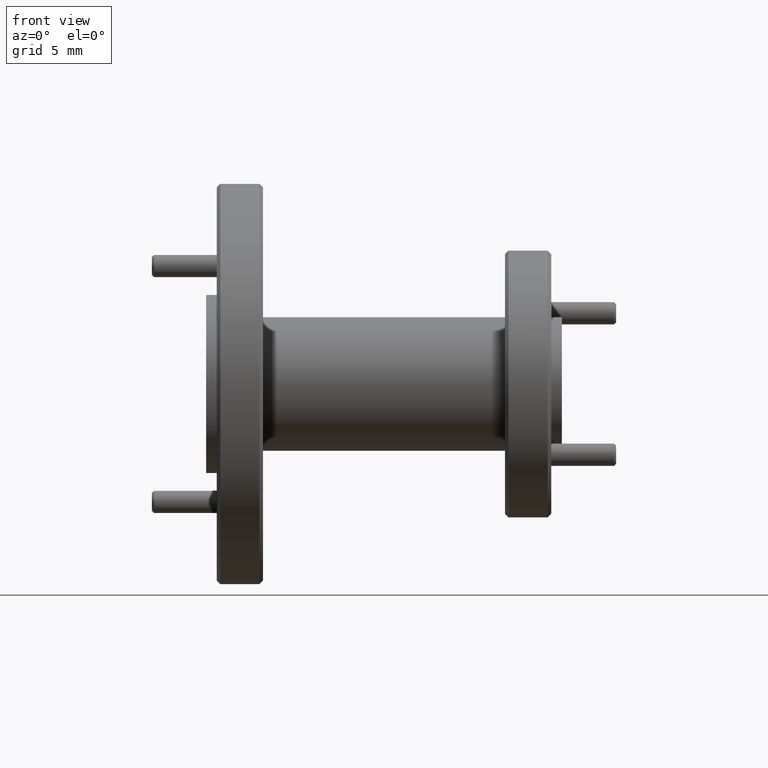
[diagram: clean part render]
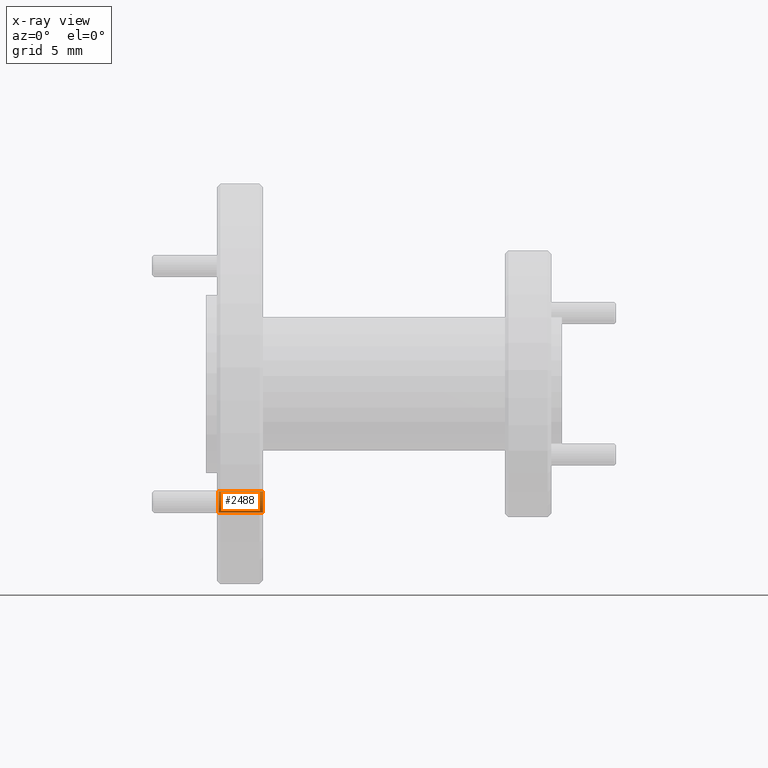
[diagram: x-ray — body ghosted, one internal face saturated and labeled with its STEP entity id]
A machine part, front view, then the same camera in x-ray: the body is ghosted and one INTERNAL B-rep face — a face not visible from any outside direction — is saturated and labeled: STEP entity #2488.
In plain terms, the highlighted cylindrical surface (edge-blend (fillet) strip) has radius 0.7556 mm, axis along (-1, 0, -0).
Its self-contained STEP definition (entity closure, byte-faithful):
#50 = DIRECTION ( 'NONE',  ( -1.000000000000000000, 1.214504284265894100E-046, -1.479334085402692200E-046 ) ) ;
#115 = CARTESIAN_POINT ( 'NONE',  ( -2.365049588133232700, 1.044209548280712800, 0.1573218543836365200 ) ) ;
#346 = AXIS2_PLACEMENT_3D ( 'NONE', #3105, #50, #369 ) ;
#369 = DIRECTION ( 'NONE',  ( 0.0000000000000000000, 0.0000000000000000000, 1.000000000000000000 ) ) ;
#495 = DIRECTION ( 'NONE',  ( 0.0000000000000000000, 0.0000000000000000000, 1.000000000000000000 ) ) ;
#587 = CARTESIAN_POINT ( 'NONE',  ( -2.370299588133232900, 1.044209548280712800, 0.1870718543836365200 ) ) ;
#797 = VERTEX_POINT ( 'NONE', #115 ) ;
#801 = CARTESIAN_POINT ( 'NONE',  ( -2.240299588133233000, 1.044209548280712800, 0.1870718543836365200 ) ) ;
#858 = VERTEX_POINT ( 'NONE', #1726 ) ;
#883 = DIRECTION ( 'NONE',  ( -1.000000000000000000, 1.214504284265894100E-046, -1.479334085402692200E-046 ) ) ;
#1092 = DIRECTION ( 'NONE',  ( -1.000000000000000000, 1.214504284265894100E-046, -1.479334085402692200E-046 ) ) ;
#1110 = EDGE_CURVE ( 'NONE', #858, #2553, #2402, .T. ) ;
#1283 = DIRECTION ( 'NONE',  ( -1.000000000000000000, 1.214504284265894100E-046, -1.479334085402692200E-046 ) ) ;
#1529 = LINE ( 'NONE', #3371, #2160 ) ;
#1561 = VERTEX_POINT ( 'NONE', #3113 ) ;
#1592 = AXIS2_PLACEMENT_3D ( 'NONE', #801, #1092, #495 ) ;
#1635 = FACE_OUTER_BOUND ( 'NONE', #3047, .T. ) ;
#1636 = ORIENTED_EDGE ( 'NONE', *, *, #1110, .F. ) ;
#1726 = CARTESIAN_POINT ( 'NONE',  ( -2.240299588133233000, 1.044209548280712800, 0.1573218543836365500 ) ) ;
#1876 = CYLINDRICAL_SURFACE ( 'NONE', #1969, 0.02974999999999997100 ) ;
#1886 = CARTESIAN_POINT ( 'NONE',  ( -2.370299588133232900, 1.044209548280712800, 0.1573218543836365500 ) ) ;
#1969 = AXIS2_PLACEMENT_3D ( 'NONE', #587, #883, #2440 ) ;
#2085 = ORIENTED_EDGE ( 'NONE', *, *, #3136, .T. ) ;
#2160 = VECTOR ( 'NONE', #2190, 39.37007874015748100 ) ;
#2190 = DIRECTION ( 'NONE',  ( -1.000000000000000000, 1.214504284265894100E-046, -1.479334085402692200E-046 ) ) ;
#2204 = CARTESIAN_POINT ( 'NONE',  ( -2.240299588133233000, 1.044209548280712800, 0.2168218543836364900 ) ) ;
#2402 = CIRCLE ( 'NONE', #1592, 0.02974999999999997100 ) ;
#2440 = DIRECTION ( 'NONE',  ( 0.0000000000000000000, 0.0000000000000000000, 1.000000000000000000 ) ) ;
#2488 = ADVANCED_FACE ( 'NONE', ( #1635 ), #1876, .F. ) ;
#2492 = ORIENTED_EDGE ( 'NONE', *, *, #2517, .T. ) ;
#2517 = EDGE_CURVE ( 'NONE', #797, #1561, #2689, .T. ) ;
#2553 = VERTEX_POINT ( 'NONE', #2204 ) ;
#2689 = CIRCLE ( 'NONE', #346, 0.02975000000000000200 ) ;
#2723 = ORIENTED_EDGE ( 'NONE', *, *, #2997, .F. ) ;
#2997 = EDGE_CURVE ( 'NONE', #2553, #1561, #1529, .T. ) ;
#3047 = EDGE_LOOP ( 'NONE', ( #1636, #2085, #2492, #2723 ) ) ;
#3105 = CARTESIAN_POINT ( 'NONE',  ( -2.365049588133232700, 1.044209548280712800, 0.1870718543836365200 ) ) ;
#3113 = CARTESIAN_POINT ( 'NONE',  ( -2.365049588133232700, 1.044209548280712800, 0.2168218543836365200 ) ) ;
#3136 = EDGE_CURVE ( 'NONE', #858, #797, #3818, .T. ) ;
#3198 = VECTOR ( 'NONE', #1283, 39.37007874015748100 ) ;
#3371 = CARTESIAN_POINT ( 'NONE',  ( -2.370299588133232900, 1.044209548280712800, 0.2168218543836364900 ) ) ;
#3818 = LINE ( 'NONE', #1886, #3198 ) ;